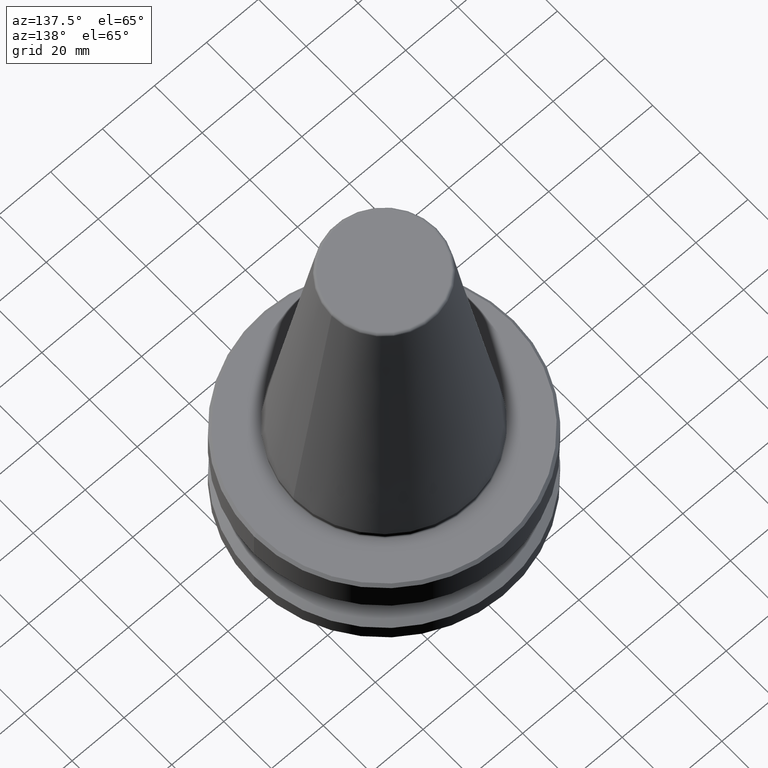
[diagram: clean part render]
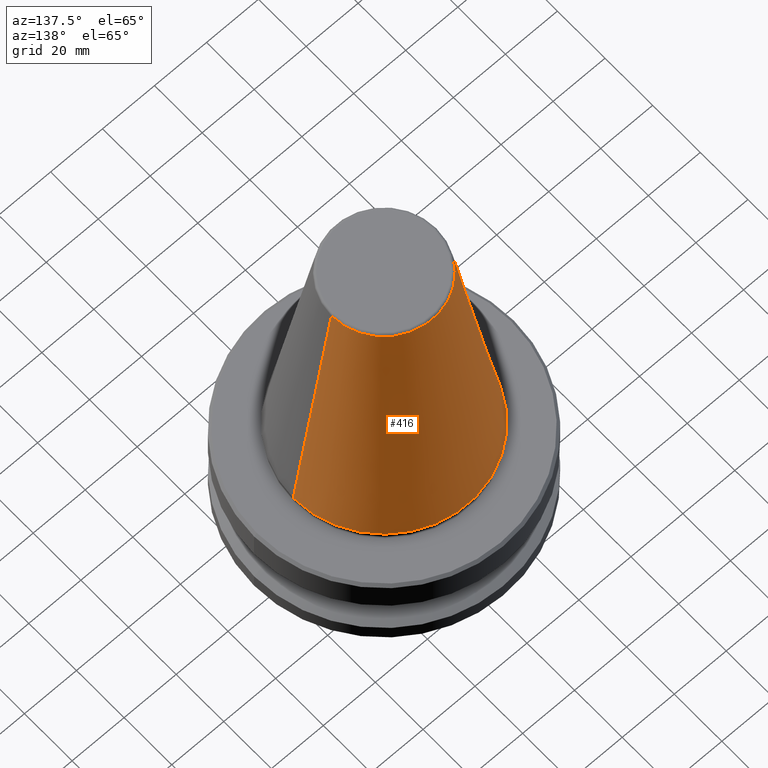
[diagram: same view with one face highlighted and labeled with its STEP entity id]
A machine part, auxiliary view. The second image highlights one B-rep face of the part: STEP entity #416.
In plain terms, the highlighted conical surface has half-angle 8.297 deg.
Its self-contained STEP definition (entity closure, byte-faithful):
#37 = CARTESIAN_POINT ( 'NONE',  ( 34.92499999999964900, 0.0000000000000000000, -1.084202172485504400E-016 ) ) ;
#82 = LINE ( 'NONE', #647, #878 ) ;
#128 = FACE_OUTER_BOUND ( 'NONE', #948, .T. ) ;
#212 = CARTESIAN_POINT ( 'NONE',  ( 20.20381645192181700, 3.375666430431378500E-015, 100.9443082234284800 ) ) ;
#232 = DIRECTION ( 'NONE',  ( -0.1443082234293895400, 0.0000000000000000000, -0.9895327870518760800 ) ) ;
#254 = AXIS2_PLACEMENT_3D ( 'NONE', #322, #865, #400 ) ;
#306 = DIRECTION ( 'NONE',  ( -0.0000000000000000000, -0.0000000000000000000, 1.000000000000000000 ) ) ;
#307 = AXIS2_PLACEMENT_3D ( 'NONE', #774, #306, #850 ) ;
#321 = VECTOR ( 'NONE', #488, 999.9999999999998900 ) ;
#322 = CARTESIAN_POINT ( 'NONE',  ( 0.0000000000000000000, 0.0000000000000000000, 100.9443082234284800 ) ) ;
#323 = VERTEX_POINT ( 'NONE', #336 ) ;
#326 = CIRCLE ( 'NONE', #307, 34.92499999999964900 ) ;
#336 = CARTESIAN_POINT ( 'NONE',  ( -34.92499999999964900, 4.277078946022088300E-015, -1.084202172485504400E-016 ) ) ;
#345 = LINE ( 'NONE', #713, #321 ) ;
#366 = EDGE_CURVE ( 'NONE', #783, #323, #326, .T. ) ;
#368 = ORIENTED_EDGE ( 'NONE', *, *, #494, .F. ) ;
#377 = VERTEX_POINT ( 'NONE', #386 ) ;
#386 = CARTESIAN_POINT ( 'NONE',  ( -20.20381645192181700, 0.0000000000000000000, 100.9443082234284800 ) ) ;
#388 = AXIS2_PLACEMENT_3D ( 'NONE', #699, #634, #617 ) ;
#400 = DIRECTION ( 'NONE',  ( 1.000000000000000000, 0.0000000000000000000, 0.0000000000000000000 ) ) ;
#416 = ADVANCED_FACE ( 'NONE', ( #128 ), #817, .T. ) ;
#447 = EDGE_CURVE ( 'NONE', #557, #377, #475, .T. ) ;
#475 = CIRCLE ( 'NONE', #254, 20.20381645192181700 ) ;
#481 = ORIENTED_EDGE ( 'NONE', *, *, #447, .F. ) ;
#487 = EDGE_CURVE ( 'NONE', #557, #783, #345, .T. ) ;
#488 = DIRECTION ( 'NONE',  ( 0.1443082234293895400, 1.767266039134429700E-017, -0.9895327870518760800 ) ) ;
#494 = EDGE_CURVE ( 'NONE', #377, #323, #82, .T. ) ;
#552 = ORIENTED_EDGE ( 'NONE', *, *, #366, .T. ) ;
#557 = VERTEX_POINT ( 'NONE', #212 ) ;
#617 = DIRECTION ( 'NONE',  ( -1.000000000000000000, 0.0000000000000000000, 0.0000000000000000000 ) ) ;
#634 = DIRECTION ( 'NONE',  ( 0.0000000000000000000, 0.0000000000000000000, -1.000000000000000000 ) ) ;
#647 = CARTESIAN_POINT ( 'NONE',  ( -34.92499999999964900, 0.0000000000000000000, 0.0000000000000000000 ) ) ;
#682 = ORIENTED_EDGE ( 'NONE', *, *, #487, .T. ) ;
#699 = CARTESIAN_POINT ( 'NONE',  ( 0.0000000000000000000, 0.0000000000000000000, 0.0000000000000000000 ) ) ;
#713 = CARTESIAN_POINT ( 'NONE',  ( 34.92499999999964900, 4.277078946022088300E-015, 0.0000000000000000000 ) ) ;
#774 = CARTESIAN_POINT ( 'NONE',  ( 0.0000000000000000000, 0.0000000000000000000, 0.0000000000000000000 ) ) ;
#783 = VERTEX_POINT ( 'NONE', #37 ) ;
#817 = CONICAL_SURFACE ( 'NONE', #388, 34.92499999999964900, 0.1448138426689043500 ) ;
#850 = DIRECTION ( 'NONE',  ( 1.000000000000000000, 0.0000000000000000000, 0.0000000000000000000 ) ) ;
#865 = DIRECTION ( 'NONE',  ( -0.0000000000000000000, -0.0000000000000000000, 1.000000000000000000 ) ) ;
#878 = VECTOR ( 'NONE', #232, 999.9999999999998900 ) ;
#948 = EDGE_LOOP ( 'NONE', ( #481, #682, #552, #368 ) ) ;